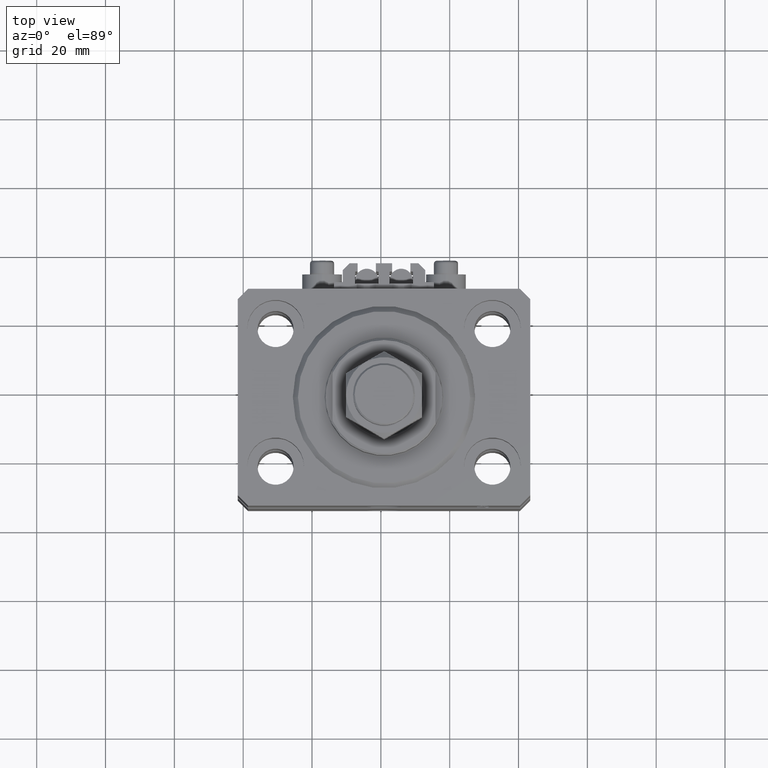
[diagram: clean part render]
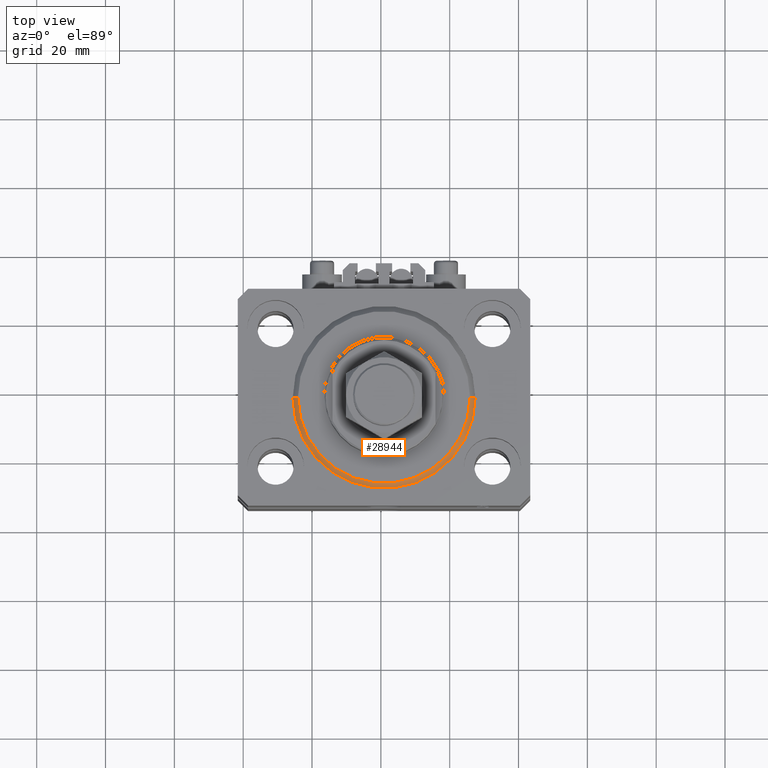
[diagram: same view with one face highlighted and labeled with its STEP entity id]
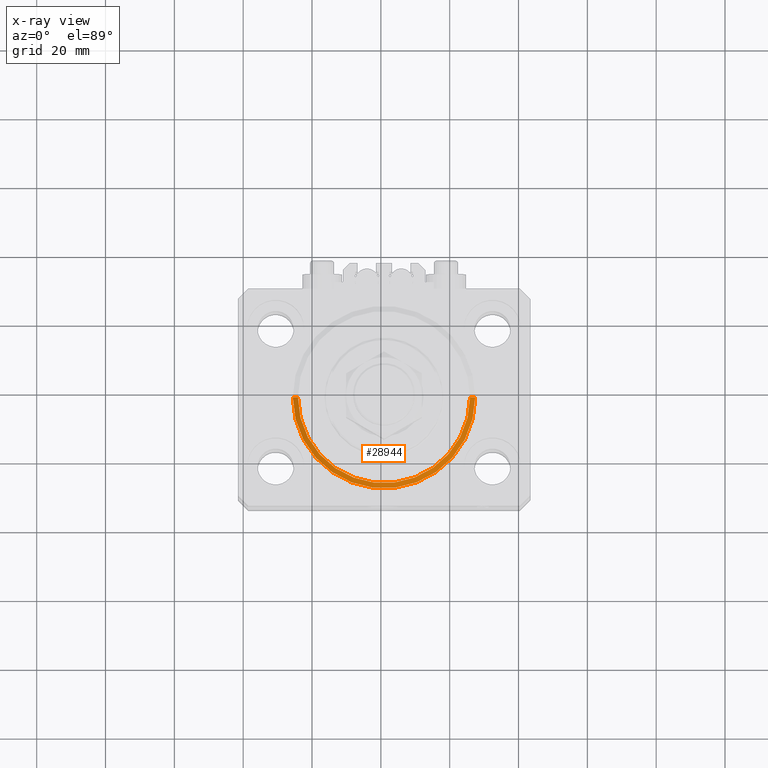
[diagram: x-ray of the same camera — body ghosted, the highlighted face saturated]
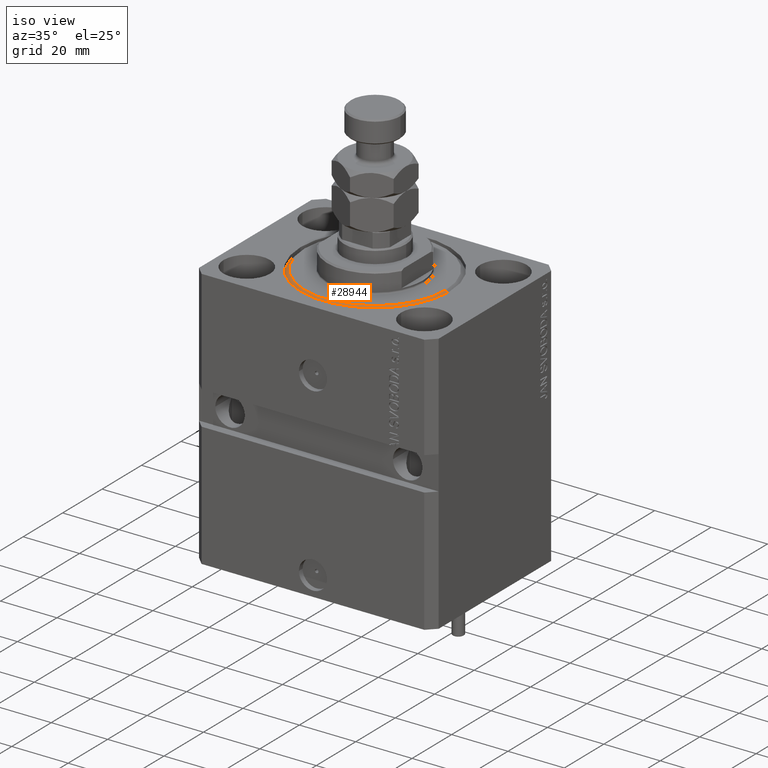
[diagram: same view with one face highlighted and labeled with its STEP entity id]
A machine part, top view. The second image highlights one B-rep face of the part: STEP entity #28944.
The next image is the same camera in x-ray: the body ghosted, the highlighted face saturated — about 0% of this face is hidden behind the body in this view.
A second angle (iso view) of the same face is appended — the face is thin or edge-on in the first view.
In plain terms, the highlighted conical surface has half-angle 45 deg.
Its self-contained STEP definition (entity closure, byte-faithful):
#1816 = VERTEX_POINT ( 'NONE', #19016 ) ;
#5120 = DIRECTION ( 'NONE',  ( -0.000000000000000000, -0.000000000000000000, 1.000000000000000000 ) ) ;
#7733 = CARTESIAN_POINT ( 'NONE',  ( -24.99999999999998224, 3.153465507804433615E-15, 0.000000000000000000 ) ) ;
#7843 = AXIS2_PLACEMENT_3D ( 'NONE', #14917, #30368, #45305 ) ;
#8227 = DIRECTION ( 'NONE',  ( -0.000000000000000000, -0.000000000000000000, 1.000000000000000000 ) ) ;
#9690 = VECTOR ( 'NONE', #25542, 1000.000000000000000 ) ;
#9980 = ORIENTED_EDGE ( 'NONE', *, *, #19916, .F. ) ;
#11075 = DIRECTION ( 'NONE',  ( 0.7071067811865483499, 0.000000000000000000, 0.7071067811865466846 ) ) ;
#14113 = CARTESIAN_POINT ( 'NONE',  ( 26.50000000000000355, 0.000000000000000000, 1.500000000000018652 ) ) ;
#14917 = CARTESIAN_POINT ( 'NONE',  ( 0.000000000000000000, 0.000000000000000000, 0.000000000000000000 ) ) ;
#16518 = FACE_OUTER_BOUND ( 'NONE', #16633, .T. ) ;
#16633 = EDGE_LOOP ( 'NONE', ( #18117, #9980, #49401, #28205 ) ) ;
#18117 = ORIENTED_EDGE ( 'NONE', *, *, #28335, .F. ) ;
#19016 = CARTESIAN_POINT ( 'NONE',  ( 26.50000000000000355, 3.245314017740486554E-15, 1.500000000000018652 ) ) ;
#19916 = EDGE_CURVE ( 'NONE', #22525, #27734, #47440, .T. ) ;
#22525 = VERTEX_POINT ( 'NONE', #37271 ) ;
#22611 = AXIS2_PLACEMENT_3D ( 'NONE', #39822, #5120, #47647 ) ;
#25542 = DIRECTION ( 'NONE',  ( -0.7071067811865483499, 8.659560562354942719E-17, 0.7071067811865466846 ) ) ;
#27213 = CARTESIAN_POINT ( 'NONE',  ( 0.000000000000000000, 0.000000000000000000, 1.500000000000018652 ) ) ;
#27716 = DIRECTION ( 'NONE',  ( 1.000000000000000000, 0.000000000000000000, 0.000000000000000000 ) ) ;
#27734 = VERTEX_POINT ( 'NONE', #7733 ) ;
#28060 = CARTESIAN_POINT ( 'NONE',  ( -26.50000000000000355, 0.000000000000000000, 1.500000000000018652 ) ) ;
#28205 = ORIENTED_EDGE ( 'NONE', *, *, #38853, .F. ) ;
#28335 = EDGE_CURVE ( 'NONE', #27734, #43818, #28830, .T. ) ;
#28830 = LINE ( 'NONE', #29336, #9690 ) ;
#28944 = ADVANCED_FACE ( 'NONE', ( #16518 ), #47657, .T. ) ;
#29336 = CARTESIAN_POINT ( 'NONE',  ( -26.50000000000000355, 3.245314017740486554E-15, 1.500000000000018652 ) ) ;
#30368 = DIRECTION ( 'NONE',  ( -0.000000000000000000, -0.000000000000000000, -1.000000000000000000 ) ) ;
#37271 = CARTESIAN_POINT ( 'NONE',  ( 24.99999999999998224, 0.000000000000000000, 0.000000000000000000 ) ) ;
#38164 = LINE ( 'NONE', #14113, #38637 ) ;
#38637 = VECTOR ( 'NONE', #11075, 1000.000000000000000 ) ;
#38853 = EDGE_CURVE ( 'NONE', #43818, #1816, #45487, .T. ) ;
#39822 = CARTESIAN_POINT ( 'NONE',  ( 0.000000000000000000, 0.000000000000000000, 1.500000000000018652 ) ) ;
#43818 = VERTEX_POINT ( 'NONE', #28060 ) ;
#45305 = DIRECTION ( 'NONE',  ( 1.000000000000000000, 0.000000000000000000, 0.000000000000000000 ) ) ;
#45487 = CIRCLE ( 'NONE', #48729, 26.50000000000000355 ) ;
#47440 = CIRCLE ( 'NONE', #7843, 24.99999999999998224 ) ;
#47534 = EDGE_CURVE ( 'NONE', #22525, #1816, #38164, .T. ) ;
#47647 = DIRECTION ( 'NONE',  ( 1.000000000000000000, 0.000000000000000000, 0.000000000000000000 ) ) ;
#47657 = CONICAL_SURFACE ( 'NONE', #22611, 26.50000000000000355, 0.7853981633974495002 ) ;
#48729 = AXIS2_PLACEMENT_3D ( 'NONE', #27213, #8227, #27716 ) ;
#49401 = ORIENTED_EDGE ( 'NONE', *, *, #47534, .T. ) ;